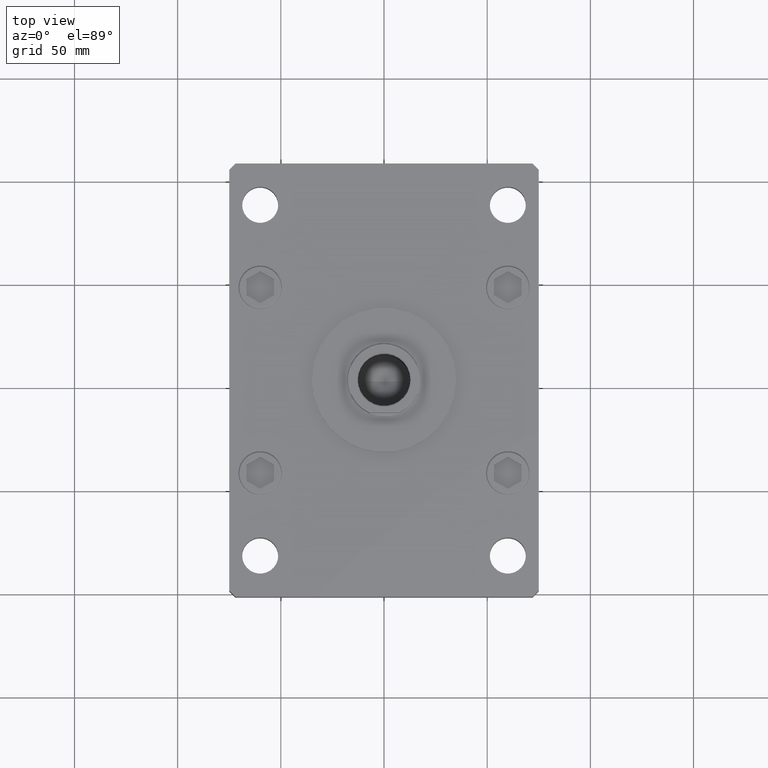
[diagram: clean part render]
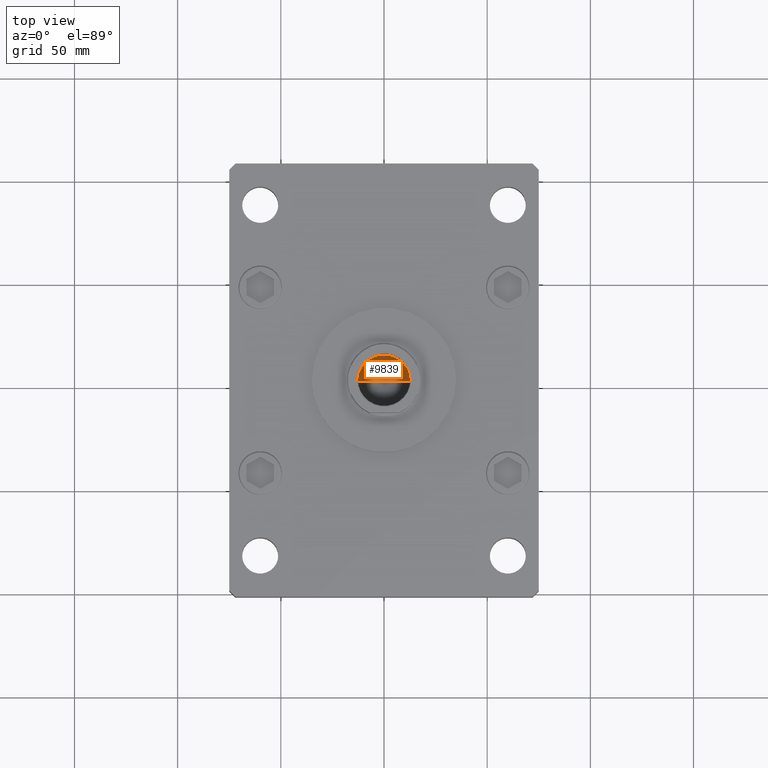
[diagram: same view with one face highlighted and labeled with its STEP entity id]
A machine part, top view. The second image highlights one B-rep face of the part: STEP entity #9839.
In plain terms, the highlighted conical surface has half-angle 59 deg.
Its self-contained STEP definition (entity closure, byte-faithful):
#90 = CARTESIAN_POINT ( 'NONE',  ( -12.74999999999999112, 1.561424668912874125E-15, 164.5000000000000284 ) ) ;
#124 = VERTEX_POINT ( 'NONE', #90 ) ;
#517 = EDGE_CURVE ( 'NONE', #47929, #124, #18911, .T. ) ;
#864 = VECTOR ( 'NONE', #40112, 1000.000000000000000 ) ;
#4279 = VECTOR ( 'NONE', #14837, 1000.000000000000000 ) ;
#4425 = AXIS2_PLACEMENT_3D ( 'NONE', #27601, #31904, #35713 ) ;
#4939 = AXIS2_PLACEMENT_3D ( 'NONE', #40453, #19382, #7699 ) ;
#6912 = CARTESIAN_POINT ( 'NONE',  ( 12.74999999999999112, 0.000000000000000000, 164.5000000000000284 ) ) ;
#7297 = FACE_OUTER_BOUND ( 'NONE', #15458, .T. ) ;
#7699 = DIRECTION ( 'NONE',  ( 1.000000000000000000, 0.000000000000000000, 0.000000000000000000 ) ) ;
#9839 = ADVANCED_FACE ( 'NONE', ( #7297 ), #27772, .F. ) ;
#11420 = CARTESIAN_POINT ( 'NONE',  ( 12.74999999999999112, 0.000000000000000000, 164.5000000000000284 ) ) ;
#14837 = DIRECTION ( 'NONE',  ( -0.8571673007021110013, 1.049727191138617093E-16, 0.5150380749100563760 ) ) ;
#15458 = EDGE_LOOP ( 'NONE', ( #28356, #18414, #29101 ) ) ;
#17913 = EDGE_CURVE ( 'NONE', #33200, #124, #32572, .T. ) ;
#18414 = ORIENTED_EDGE ( 'NONE', *, *, #30648, .T. ) ;
#18911 = LINE ( 'NONE', #50845, #4279 ) ;
#19382 = DIRECTION ( 'NONE',  ( -0.000000000000000000, -0.000000000000000000, 1.000000000000000000 ) ) ;
#19827 = LINE ( 'NONE', #11420, #864 ) ;
#27601 = CARTESIAN_POINT ( 'NONE',  ( 0.000000000000000000, 0.000000000000000000, 164.5000000000000284 ) ) ;
#27772 = CONICAL_SURFACE ( 'NONE', #4425, 12.74999999999999112, 1.029744258676651869 ) ;
#28356 = ORIENTED_EDGE ( 'NONE', *, *, #517, .F. ) ;
#29101 = ORIENTED_EDGE ( 'NONE', *, *, #17913, .T. ) ;
#30648 = EDGE_CURVE ( 'NONE', #47929, #33200, #19827, .T. ) ;
#31904 = DIRECTION ( 'NONE',  ( -0.000000000000000000, -0.000000000000000000, 1.000000000000000000 ) ) ;
#32572 = CIRCLE ( 'NONE', #4939, 12.74999999999999112 ) ;
#33200 = VERTEX_POINT ( 'NONE', #6912 ) ;
#35713 = DIRECTION ( 'NONE',  ( 1.000000000000000000, 0.000000000000000000, 0.000000000000000000 ) ) ;
#40112 = DIRECTION ( 'NONE',  ( 0.8571673007021110013, 0.000000000000000000, 0.5150380749100563760 ) ) ;
#40453 = CARTESIAN_POINT ( 'NONE',  ( 0.000000000000000000, 0.000000000000000000, 164.5000000000000284 ) ) ;
#42927 = CARTESIAN_POINT ( 'NONE',  ( -1.307202896762960287E-14, 0.000000000000000000, 156.8390271073986071 ) ) ;
#47929 = VERTEX_POINT ( 'NONE', #42927 ) ;
#50845 = CARTESIAN_POINT ( 'NONE',  ( -12.74999999999999112, 1.561424668912874125E-15, 164.5000000000000284 ) ) ;